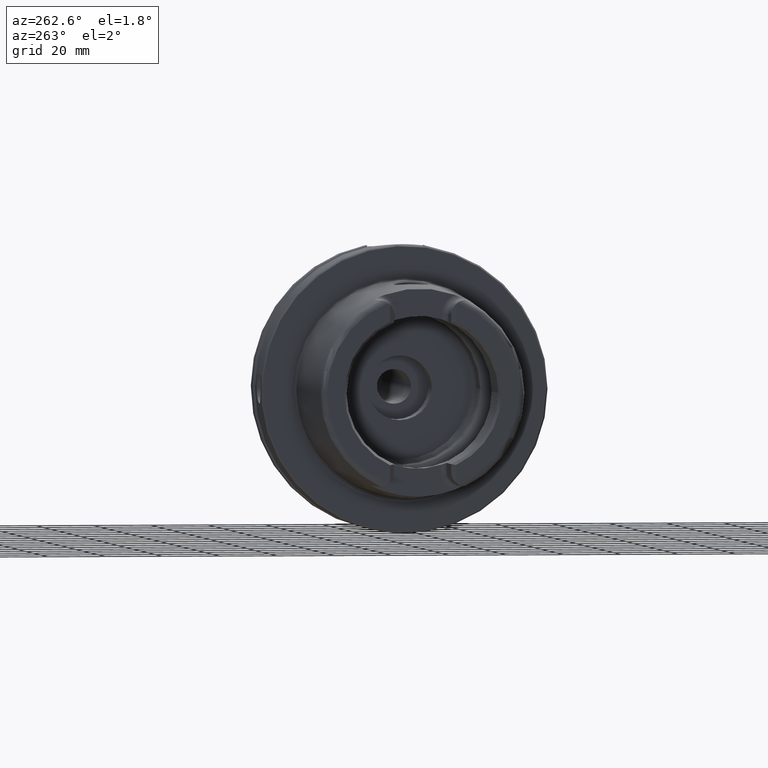
[diagram: clean part render]
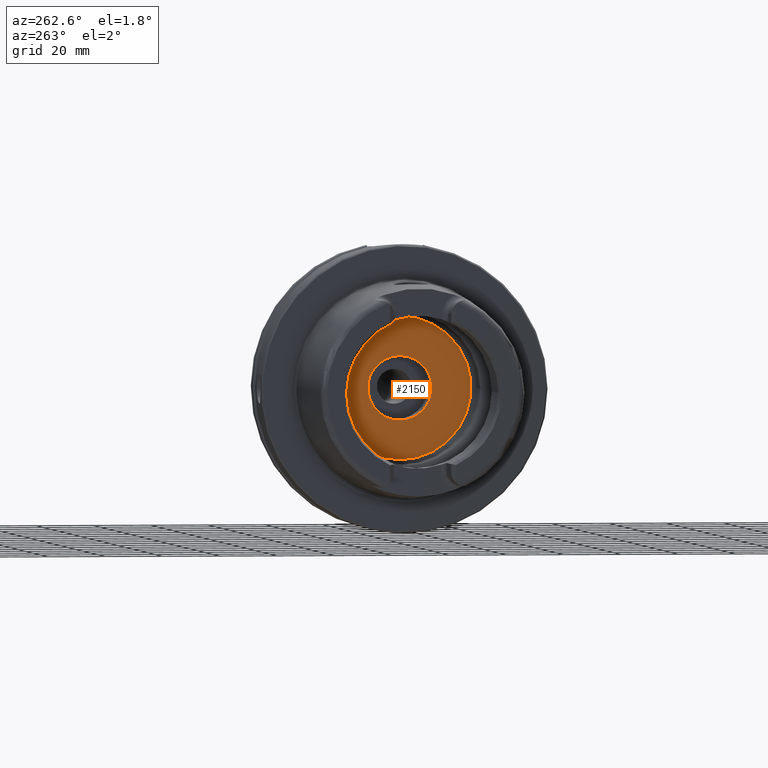
[diagram: same view with one face highlighted and labeled with its STEP entity id]
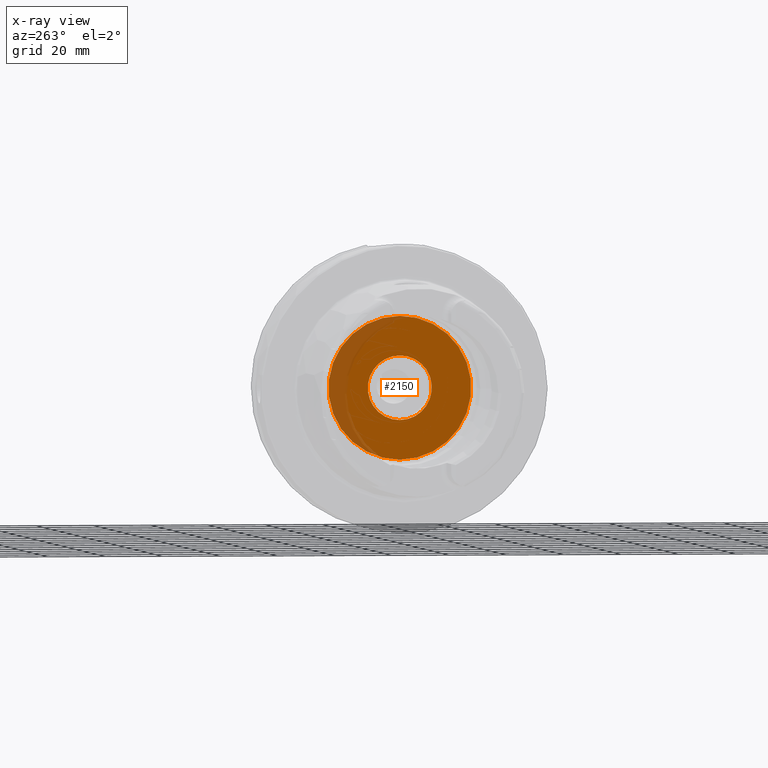
[diagram: x-ray of the same camera — body ghosted, the highlighted face saturated]
A machine part, auxiliary view. The second image highlights one B-rep face of the part: STEP entity #2150.
The next image is the same camera in x-ray: the body ghosted, the highlighted face saturated — about 19% of this face is hidden behind the body in this view.
In plain terms, the highlighted planar face has unit normal (1, 0, 0).
Its self-contained STEP definition (entity closure, byte-faithful):
#97=FACE_BOUND('',#457,.T.);
#134=PLANE('',#2425);
#320=FACE_OUTER_BOUND('',#456,.T.);
#456=EDGE_LOOP('',(#1947));
#457=EDGE_LOOP('',(#1948));
#805=CIRCLE('',#2414,11.188101);
#812=CIRCLE('',#2426,24.9);
#1028=VERTEX_POINT('',#4587);
#1034=VERTEX_POINT('',#4607);
#1337=EDGE_CURVE('',#1028,#1028,#805,.T.);
#1346=EDGE_CURVE('',#1034,#1034,#812,.T.);
#1947=ORIENTED_EDGE('',*,*,#1346,.T.);
#1948=ORIENTED_EDGE('',*,*,#1337,.T.);
#2150=ADVANCED_FACE('',(#320,#97),#134,.F.);
#2414=AXIS2_PLACEMENT_3D('',#4588,#3012,#3013);
#2425=AXIS2_PLACEMENT_3D('',#4606,#3036,#3037);
#2426=AXIS2_PLACEMENT_3D('',#4608,#3038,#3039);
#3012=DIRECTION('center_axis',(1.,0.,0.));
#3013=DIRECTION('ref_axis',(0.,0.,1.));
#3036=DIRECTION('center_axis',(1.,0.,0.));
#3037=DIRECTION('ref_axis',(0.,0.,-1.));
#3038=DIRECTION('center_axis',(-1.,0.,0.));
#3039=DIRECTION('ref_axis',(0.,0.,1.));
#4587=CARTESIAN_POINT('',(12.5,-1.37014720781873E-15,-11.188101));
#4588=CARTESIAN_POINT('Origin',(12.5,0.,0.));
#4606=CARTESIAN_POINT('Origin',(12.5,24.9,0.));
#4607=CARTESIAN_POINT('',(12.5,-3.04937052987691E-15,-24.9));
#4608=CARTESIAN_POINT('Origin',(12.5,0.,0.));